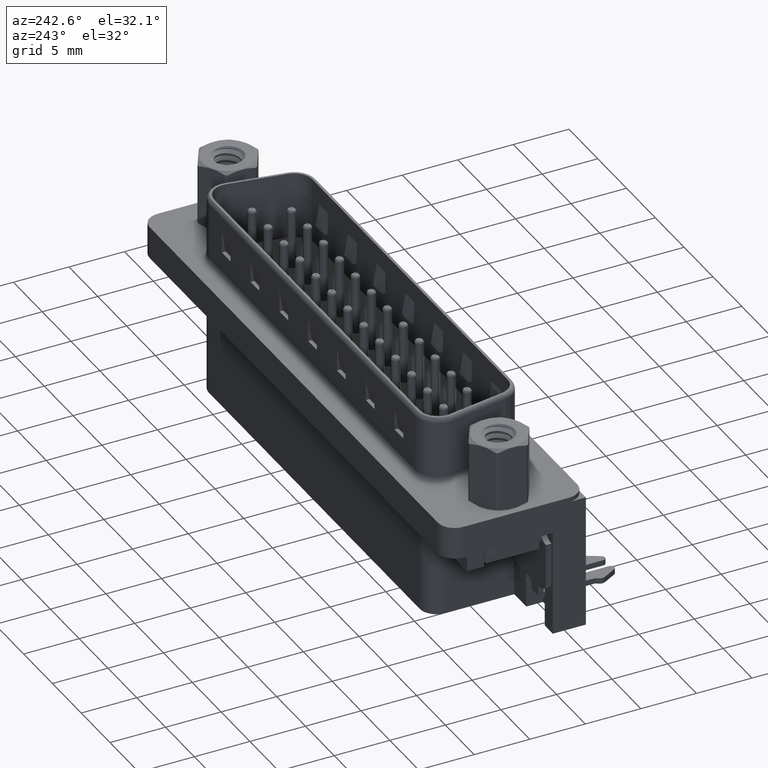
[diagram: clean part render]
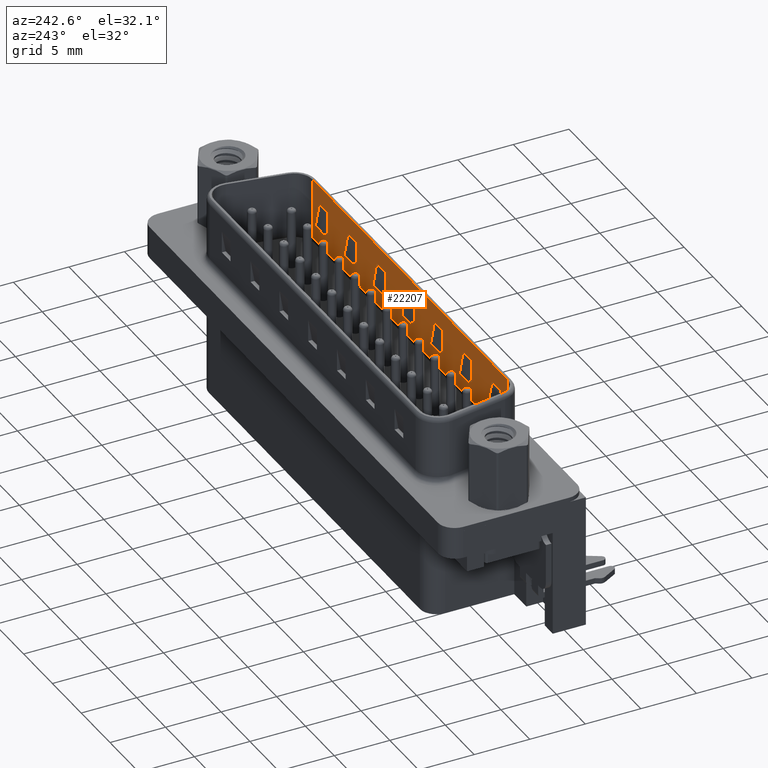
[diagram: same view with one face highlighted and labeled with its STEP entity id]
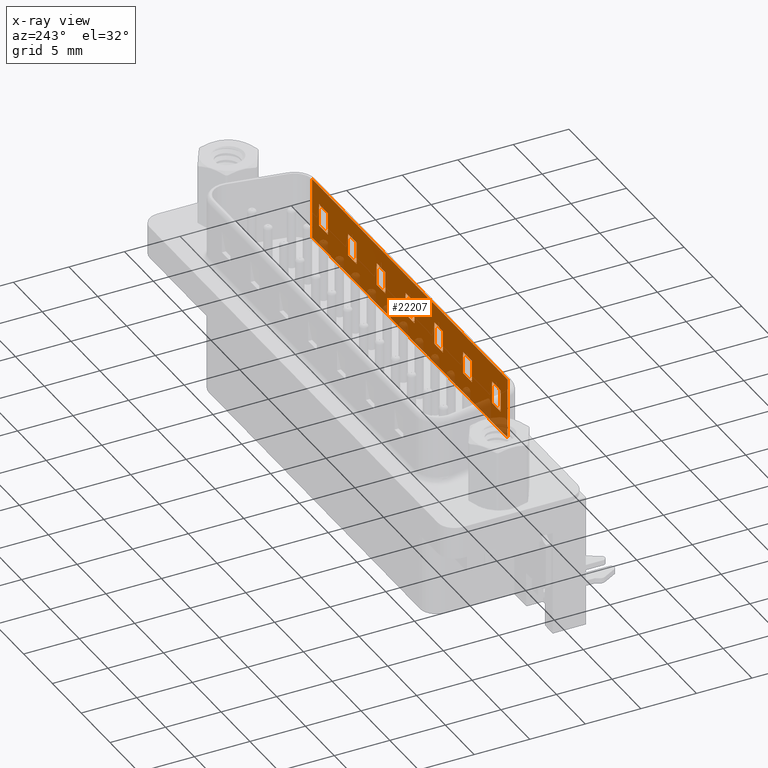
[diagram: x-ray of the same camera — body ghosted, the highlighted face saturated]
A machine part, auxiliary view. The second image highlights one B-rep face of the part: STEP entity #22207.
The next image is the same camera in x-ray: the body ghosted, the highlighted face saturated — about 11% of this face is hidden behind the body in this view.
In plain terms, the highlighted planar face has unit normal (0, 1, 0).
Its self-contained STEP definition (entity closure, byte-faithful):
#58 = VERTEX_POINT ( 'NONE', #3916 ) ;
#108 = CARTESIAN_POINT ( 'NONE',  ( 24.27000000000000000, -4.180000000000005000, 6.500000000000000000 ) ) ;
#260 = LINE ( 'NONE', #1100, #1598 ) ;
#347 = ORIENTED_EDGE ( 'NONE', *, *, #9523, .T. ) ;
#607 = VECTOR ( 'NONE', #19724, 1000.000000000000000 ) ;
#736 = CARTESIAN_POINT ( 'NONE',  ( 27.77000000000000300, -4.180000000000005000, 6.500000000000000000 ) ) ;
#751 = CARTESIAN_POINT ( 'NONE',  ( 9.269999999999999600, -4.180000000000005000, 2.694948974278314600 ) ) ;
#826 = ORIENTED_EDGE ( 'NONE', *, *, #6310, .T. ) ;
#897 = DIRECTION ( 'NONE',  ( 0.0000000000000000000, -0.0000000000000000000, -1.000000000000000000 ) ) ;
#904 = LINE ( 'NONE', #11072, #23615 ) ;
#924 = VERTEX_POINT ( 'NONE', #24294 ) ;
#997 = VERTEX_POINT ( 'NONE', #25959 ) ;
#1100 = CARTESIAN_POINT ( 'NONE',  ( 45.49015277954435300, -4.180000000000005000, 2.694948974278314600 ) ) ;
#1358 = DIRECTION ( 'NONE',  ( -1.000000000000000000, 0.0000000000000000000, 0.0000000000000000000 ) ) ;
#1429 = CARTESIAN_POINT ( 'NONE',  ( 6.549847220455644600, -4.180000000000005000, 6.500000000000000000 ) ) ;
#1587 = DIRECTION ( 'NONE',  ( -0.0000000000000000000, -0.0000000000000000000, -1.000000000000000000 ) ) ;
#1598 = VECTOR ( 'NONE', #16290, 1000.000000000000000 ) ;
#1631 = VERTEX_POINT ( 'NONE', #8570 ) ;
#1747 = VECTOR ( 'NONE', #8071, 1000.000000000000000 ) ;
#1757 = DIRECTION ( 'NONE',  ( 0.0000000000000000000, -0.0000000000000000000, -1.000000000000000000 ) ) ;
#1769 = CARTESIAN_POINT ( 'NONE',  ( 37.76999999999999600, -4.180000000000005000, 2.694948974278314600 ) ) ;
#1878 = VERTEX_POINT ( 'NONE', #9832 ) ;
#1921 = ORIENTED_EDGE ( 'NONE', *, *, #12300, .F. ) ;
#1938 = EDGE_CURVE ( 'NONE', #24684, #9412, #2375, .T. ) ;
#2044 = LINE ( 'NONE', #11519, #13970 ) ;
#2254 = DIRECTION ( 'NONE',  ( 0.0000000000000000000, -0.0000000000000000000, -1.000000000000000000 ) ) ;
#2321 = VECTOR ( 'NONE', #21369, 1000.000000000000000 ) ;
#2363 = DIRECTION ( 'NONE',  ( 1.000000000000000000, 0.0000000000000000000, 0.0000000000000000000 ) ) ;
#2375 = LINE ( 'NONE', #24560, #11187 ) ;
#2402 = LINE ( 'NONE', #14322, #13977 ) ;
#2518 = CARTESIAN_POINT ( 'NONE',  ( 14.27000000000000000, -4.180000000000005000, 2.694948974278314600 ) ) ;
#2531 = EDGE_CURVE ( 'NONE', #10967, #4141, #8052, .T. ) ;
#2568 = EDGE_CURVE ( 'NONE', #7830, #3151, #10415, .T. ) ;
#2692 = VECTOR ( 'NONE', #9816, 1000.000000000000000 ) ;
#2704 = ORIENTED_EDGE ( 'NONE', *, *, #21284, .F. ) ;
#2916 = ORIENTED_EDGE ( 'NONE', *, *, #2568, .F. ) ;
#2918 = CARTESIAN_POINT ( 'NONE',  ( 40.49015277954435300, -4.180000000000005000, 6.400000000000000400 ) ) ;
#2936 = LINE ( 'NONE', #3694, #3250 ) ;
#3005 = VERTEX_POINT ( 'NONE', #26328 ) ;
#3141 = DIRECTION ( 'NONE',  ( 0.0000000000000000000, 0.0000000000000000000, 1.000000000000000000 ) ) ;
#3151 = VERTEX_POINT ( 'NONE', #5234 ) ;
#3250 = VECTOR ( 'NONE', #1358, 1000.000000000000000 ) ;
#3276 = DIRECTION ( 'NONE',  ( 0.0000000000000000000, -0.0000000000000000000, -1.000000000000000000 ) ) ;
#3367 = CARTESIAN_POINT ( 'NONE',  ( 34.27000000000000300, -4.180000000000005000, 6.500000000000000000 ) ) ;
#3377 = VECTOR ( 'NONE', #22000, 1000.000000000000000 ) ;
#3395 = VERTEX_POINT ( 'NONE', #8656 ) ;
#3451 = EDGE_CURVE ( 'NONE', #25088, #21271, #19161, .T. ) ;
#3552 = EDGE_CURVE ( 'NONE', #3005, #10307, #15762, .T. ) ;
#3634 = EDGE_CURVE ( 'NONE', #3887, #14616, #19932, .T. ) ;
#3694 = CARTESIAN_POINT ( 'NONE',  ( 25.49015277954435600, -4.180000000000005000, 2.694948974278314600 ) ) ;
#3722 = EDGE_CURVE ( 'NONE', #25499, #19603, #904, .T. ) ;
#3726 = CARTESIAN_POINT ( 'NONE',  ( 25.49015277954435600, -4.180000000000005000, 4.694948974278315000 ) ) ;
#3789 = CARTESIAN_POINT ( 'NONE',  ( 32.77000000000000300, -4.180000000000005000, 2.714867081101111100 ) ) ;
#3856 = ORIENTED_EDGE ( 'NONE', *, *, #13455, .T. ) ;
#3884 = DIRECTION ( 'NONE',  ( 0.0000000000000000000, 0.0000000000000000000, 1.000000000000000000 ) ) ;
#3887 = VERTEX_POINT ( 'NONE', #17971 ) ;
#3902 = ORIENTED_EDGE ( 'NONE', *, *, #23858, .T. ) ;
#3916 = CARTESIAN_POINT ( 'NONE',  ( 7.770000000000002200, -4.179999999999996200, 4.694948974278313300 ) ) ;
#3999 = CARTESIAN_POINT ( 'NONE',  ( 45.49015277954435300, -4.180000000000005000, 4.694948974278315000 ) ) ;
#4141 = VERTEX_POINT ( 'NONE', #2518 ) ;
#4239 = EDGE_CURVE ( 'NONE', #24835, #20571, #6598, .T. ) ;
#4284 = CARTESIAN_POINT ( 'NONE',  ( 30.49015277954435300, -4.180000000000005000, 2.694948974278314600 ) ) ;
#4309 = FACE_BOUND ( 'NONE', #20420, .T. ) ;
#4334 = VECTOR ( 'NONE', #6205, 1000.000000000000000 ) ;
#4394 = DIRECTION ( 'NONE',  ( 0.0000000000000000000, -0.0000000000000000000, -1.000000000000000000 ) ) ;
#4523 = LINE ( 'NONE', #17805, #7916 ) ;
#4554 = EDGE_LOOP ( 'NONE', ( #20448, #3856, #13221, #6406 ) ) ;
#4562 = CARTESIAN_POINT ( 'NONE',  ( 40.49015277954435300, -4.180000000000005000, 6.500000000000000000 ) ) ;
#4564 = ORIENTED_EDGE ( 'NONE', *, *, #19503, .F. ) ;
#4569 = CARTESIAN_POINT ( 'NONE',  ( 32.77000000000000300, -4.179999999999996200, 4.694948974278313300 ) ) ;
#4581 = VECTOR ( 'NONE', #15773, 1000.000000000000000 ) ;
#4644 = CARTESIAN_POINT ( 'NONE',  ( 29.27000000000000000, -4.180000000000005000, 2.694948974278314600 ) ) ;
#4712 = ORIENTED_EDGE ( 'NONE', *, *, #3451, .F. ) ;
#4974 = EDGE_CURVE ( 'NONE', #58, #25246, #9925, .T. ) ;
#5016 = CARTESIAN_POINT ( 'NONE',  ( 39.26999999999999600, -4.180000000000005000, 2.714867081101112000 ) ) ;
#5033 = ORIENTED_EDGE ( 'NONE', *, *, #9531, .T. ) ;
#5132 = VECTOR ( 'NONE', #11609, 1000.000000000000000 ) ;
#5147 = DIRECTION ( 'NONE',  ( 0.0000000000000000000, 0.0000000000000000000, 1.000000000000000000 ) ) ;
#5157 = VECTOR ( 'NONE', #10951, 1000.000000000000000 ) ;
#5234 = CARTESIAN_POINT ( 'NONE',  ( 39.26999999999999600, -4.179999999999996200, 4.694948974278313300 ) ) ;
#5528 = DIRECTION ( 'NONE',  ( 0.0000000000000000000, 0.0000000000000000000, 1.000000000000000000 ) ) ;
#5589 = EDGE_LOOP ( 'NONE', ( #24772, #23639, #826, #6833, #17294, #9655 ) ) ;
#5634 = VERTEX_POINT ( 'NONE', #16458 ) ;
#5637 = VECTOR ( 'NONE', #27334, 1000.000000000000000 ) ;
#5648 = CARTESIAN_POINT ( 'NONE',  ( 19.27000000000000000, -4.180000000000005000, 6.500000000000000000 ) ) ;
#5843 = VECTOR ( 'NONE', #1587, 1000.000000000000000 ) ;
#5951 = VERTEX_POINT ( 'NONE', #24540 ) ;
#5976 = EDGE_CURVE ( 'NONE', #25246, #24472, #2044, .T. ) ;
#6001 = VERTEX_POINT ( 'NONE', #28019 ) ;
#6205 = DIRECTION ( 'NONE',  ( 0.0000000000000000000, -0.0000000000000000000, -1.000000000000000000 ) ) ;
#6223 = VECTOR ( 'NONE', #24395, 1000.000000000000000 ) ;
#6232 = CARTESIAN_POINT ( 'NONE',  ( 39.26999999999999600, -4.180000000000005000, 6.500000000000000000 ) ) ;
#6272 = ORIENTED_EDGE ( 'NONE', *, *, #5976, .F. ) ;
#6283 = EDGE_CURVE ( 'NONE', #9958, #25958, #20428, .T. ) ;
#6310 = EDGE_CURVE ( 'NONE', #3005, #5951, #17685, .T. ) ;
#6337 = LINE ( 'NONE', #13982, #14236 ) ;
#6368 = CARTESIAN_POINT ( 'NONE',  ( 34.27000000000000300, -4.180000000000005000, 6.500000000000000000 ) ) ;
#6384 = ORIENTED_EDGE ( 'NONE', *, *, #1938, .F. ) ;
#6406 = ORIENTED_EDGE ( 'NONE', *, *, #17531, .F. ) ;
#6490 = VECTOR ( 'NONE', #3884, 1000.000000000000000 ) ;
#6598 = LINE ( 'NONE', #24638, #4581 ) ;
#6646 = EDGE_CURVE ( 'NONE', #14321, #3395, #2402, .T. ) ;
#6708 = VECTOR ( 'NONE', #3141, 1000.000000000000000 ) ;
#6721 = DIRECTION ( 'NONE',  ( -0.0000000000000000000, -0.0000000000000000000, -1.000000000000000000 ) ) ;
#6833 = ORIENTED_EDGE ( 'NONE', *, *, #21102, .F. ) ;
#6914 = VECTOR ( 'NONE', #20684, 1000.000000000000000 ) ;
#7392 = EDGE_CURVE ( 'NONE', #18694, #24684, #10809, .T. ) ;
#7521 = LINE ( 'NONE', #10056, #1747 ) ;
#7529 = CARTESIAN_POINT ( 'NONE',  ( 35.49015277954436000, -4.180000000000005000, 2.694948974278314600 ) ) ;
#7558 = EDGE_CURVE ( 'NONE', #924, #997, #19716, .T. ) ;
#7579 = VECTOR ( 'NONE', #18973, 1000.000000000000000 ) ;
#7602 = DIRECTION ( 'NONE',  ( 0.0000000000000000000, -0.0000000000000000000, -1.000000000000000000 ) ) ;
#7704 = VECTOR ( 'NONE', #19162, 1000.000000000000000 ) ;
#7830 = VERTEX_POINT ( 'NONE', #21196 ) ;
#7870 = VERTEX_POINT ( 'NONE', #17186 ) ;
#7879 = LINE ( 'NONE', #16928, #6490 ) ;
#7916 = VECTOR ( 'NONE', #17894, 1000.000000000000000 ) ;
#7940 = CARTESIAN_POINT ( 'NONE',  ( 34.27000000000000300, -4.180000000000005000, 2.714867081101112000 ) ) ;
#8004 = CARTESIAN_POINT ( 'NONE',  ( 37.76999999999999600, -4.180000000000005000, 2.714867081101111100 ) ) ;
#8052 = LINE ( 'NONE', #18642, #16925 ) ;
#8071 = DIRECTION ( 'NONE',  ( -1.000000000000000000, 0.0000000000000000000, 0.0000000000000000000 ) ) ;
#8155 = VECTOR ( 'NONE', #21197, 1000.000000000000000 ) ;
#8191 = ORIENTED_EDGE ( 'NONE', *, *, #26756, .F. ) ;
#8228 = LINE ( 'NONE', #2918, #10245 ) ;
#8341 = VERTEX_POINT ( 'NONE', #25292 ) ;
#8402 = CARTESIAN_POINT ( 'NONE',  ( 55.49015277954435300, -4.180000000000005000, 4.694948974278315000 ) ) ;
#8419 = EDGE_CURVE ( 'NONE', #27118, #19403, #13241, .T. ) ;
#8471 = CARTESIAN_POINT ( 'NONE',  ( 24.27000000000000300, -4.179999999999996200, 4.694948974278313300 ) ) ;
#8570 = CARTESIAN_POINT ( 'NONE',  ( 12.77000000000000100, -4.179999999999996200, 4.694948974278313300 ) ) ;
#8577 = CARTESIAN_POINT ( 'NONE',  ( 12.77000000000000300, -4.180000000000005000, 6.500000000000000000 ) ) ;
#8616 = CARTESIAN_POINT ( 'NONE',  ( 24.27000000000000000, -4.180000000000005000, 2.694948974278314600 ) ) ;
#8656 = CARTESIAN_POINT ( 'NONE',  ( 19.27000000000000000, -4.180000000000005000, 2.714867081101112000 ) ) ;
#8671 = ORIENTED_EDGE ( 'NONE', *, *, #20132, .F. ) ;
#8688 = CARTESIAN_POINT ( 'NONE',  ( 39.26999999999999600, -4.180000000000005000, 6.500000000000000000 ) ) ;
#8894 = EDGE_CURVE ( 'NONE', #3395, #22166, #27501, .T. ) ;
#9110 = CARTESIAN_POINT ( 'NONE',  ( 7.770000000000002200, -4.180000000000005000, 2.694948974278314600 ) ) ;
#9388 = EDGE_LOOP ( 'NONE', ( #10325, #26827, #21413, #2916, #347, #6384 ) ) ;
#9398 = LINE ( 'NONE', #21710, #13128 ) ;
#9412 = VERTEX_POINT ( 'NONE', #8004 ) ;
#9523 = EDGE_CURVE ( 'NONE', #7830, #9412, #21996, .T. ) ;
#9531 = EDGE_CURVE ( 'NONE', #6001, #21271, #9398, .T. ) ;
#9655 = ORIENTED_EDGE ( 'NONE', *, *, #18911, .F. ) ;
#9666 = EDGE_LOOP ( 'NONE', ( #14871, #10650, #26552, #2704, #25489, #23440 ) ) ;
#9816 = DIRECTION ( 'NONE',  ( 0.0000000000000000000, -0.0000000000000000000, -1.000000000000000000 ) ) ;
#9832 = CARTESIAN_POINT ( 'NONE',  ( 7.770000000000002200, -4.180000000000005000, 2.714867081101111100 ) ) ;
#9857 = EDGE_LOOP ( 'NONE', ( #24815, #25912, #1921, #16296, #20060, #19868 ) ) ;
#9864 = DIRECTION ( 'NONE',  ( 1.000000000000000000, 0.0000000000000000000, 0.0000000000000000000 ) ) ;
#9871 = VERTEX_POINT ( 'NONE', #22738 ) ;
#9925 = LINE ( 'NONE', #3726, #7579 ) ;
#9958 = VERTEX_POINT ( 'NONE', #10656 ) ;
#10056 = CARTESIAN_POINT ( 'NONE',  ( 40.49015277954435300, -4.180000000000005000, 2.694948974278314600 ) ) ;
#10095 = VECTOR ( 'NONE', #4394, 1000.000000000000000 ) ;
#10151 = EDGE_CURVE ( 'NONE', #58, #1878, #22316, .T. ) ;
#10195 = LINE ( 'NONE', #4562, #25493 ) ;
#10245 = VECTOR ( 'NONE', #20158, 1000.000000000000000 ) ;
#10307 = VERTEX_POINT ( 'NONE', #8471 ) ;
#10325 = ORIENTED_EDGE ( 'NONE', *, *, #7392, .F. ) ;
#10395 = LINE ( 'NONE', #3999, #7704 ) ;
#10415 = LINE ( 'NONE', #8402, #16254 ) ;
#10650 = ORIENTED_EDGE ( 'NONE', *, *, #15343, .F. ) ;
#10656 = CARTESIAN_POINT ( 'NONE',  ( 27.77000000000000300, -4.180000000000005000, 2.694948974278314600 ) ) ;
#10665 = VECTOR ( 'NONE', #12039, 1000.000000000000000 ) ;
#10726 = DIRECTION ( 'NONE',  ( 0.0000000000000000000, -0.0000000000000000000, -1.000000000000000000 ) ) ;
#10745 = FACE_BOUND ( 'NONE', #9388, .T. ) ;
#10806 = CARTESIAN_POINT ( 'NONE',  ( 30.49015277954435300, -4.180000000000005000, 4.694948974278315000 ) ) ;
#10809 = LINE ( 'NONE', #20210, #3377 ) ;
#10814 = AXIS2_PLACEMENT_3D ( 'NONE', #16503, #13940, #22872 ) ;
#10872 = DIRECTION ( 'NONE',  ( 0.0000000000000000000, -0.0000000000000000000, -1.000000000000000000 ) ) ;
#10918 = DIRECTION ( 'NONE',  ( 1.000000000000000000, 0.0000000000000000000, 0.0000000000000000000 ) ) ;
#10942 = CARTESIAN_POINT ( 'NONE',  ( 24.27000000000000000, -4.180000000000005000, 2.714867081101112000 ) ) ;
#10951 = DIRECTION ( 'NONE',  ( 0.0000000000000000000, -0.0000000000000000000, -1.000000000000000000 ) ) ;
#10967 = VERTEX_POINT ( 'NONE', #13024 ) ;
#10975 = EDGE_CURVE ( 'NONE', #4141, #9871, #12340, .T. ) ;
#11021 = CARTESIAN_POINT ( 'NONE',  ( 37.76999999999999600, -4.180000000000005000, 6.500000000000000000 ) ) ;
#11072 = CARTESIAN_POINT ( 'NONE',  ( 32.77000000000000300, -4.180000000000005000, 6.500000000000000000 ) ) ;
#11128 = ORIENTED_EDGE ( 'NONE', *, *, #4974, .F. ) ;
#11187 = VECTOR ( 'NONE', #11919, 1000.000000000000000 ) ;
#11519 = CARTESIAN_POINT ( 'NONE',  ( 9.269999999999999600, -4.180000000000005000, 6.500000000000000000 ) ) ;
#11531 = CARTESIAN_POINT ( 'NONE',  ( 27.77000000000000300, -4.179999999999996200, 4.694948974278313300 ) ) ;
#11563 = EDGE_CURVE ( 'NONE', #8341, #20790, #8228, .T. ) ;
#11609 = DIRECTION ( 'NONE',  ( 0.0000000000000000000, -0.0000000000000000000, -1.000000000000000000 ) ) ;
#11648 = CARTESIAN_POINT ( 'NONE',  ( 19.27000000000000000, -4.180000000000005000, 2.694948974278314600 ) ) ;
#11919 = DIRECTION ( 'NONE',  ( 0.0000000000000000000, 0.0000000000000000000, 1.000000000000000000 ) ) ;
#12039 = DIRECTION ( 'NONE',  ( 1.000000000000000000, -0.0000000000000000000, 0.0000000000000000000 ) ) ;
#12140 = FACE_BOUND ( 'NONE', #14990, .T. ) ;
#12262 = CARTESIAN_POINT ( 'NONE',  ( 27.77000000000000300, -4.180000000000005000, 6.500000000000000000 ) ) ;
#12300 = EDGE_CURVE ( 'NONE', #19348, #10967, #18078, .T. ) ;
#12331 = VERTEX_POINT ( 'NONE', #8616 ) ;
#12339 = ORIENTED_EDGE ( 'NONE', *, *, #8894, .F. ) ;
#12340 = LINE ( 'NONE', #4284, #6223 ) ;
#12502 = LINE ( 'NONE', #17505, #6708 ) ;
#12568 = VECTOR ( 'NONE', #1757, 1000.000000000000000 ) ;
#12648 = ORIENTED_EDGE ( 'NONE', *, *, #6283, .F. ) ;
#13024 = CARTESIAN_POINT ( 'NONE',  ( 14.27000000000000000, -4.180000000000005000, 2.714867081101112000 ) ) ;
#13128 = VECTOR ( 'NONE', #10726, 1000.000000000000000 ) ;
#13165 = VECTOR ( 'NONE', #2254, 1000.000000000000000 ) ;
#13221 = ORIENTED_EDGE ( 'NONE', *, *, #3634, .F. ) ;
#13241 = LINE ( 'NONE', #3367, #12568 ) ;
#13270 = LINE ( 'NONE', #19969, #17029 ) ;
#13354 = CARTESIAN_POINT ( 'NONE',  ( 40.49015277954435300, -4.180000000000005000, 0.8999999999999998000 ) ) ;
#13455 = EDGE_CURVE ( 'NONE', #8341, #14616, #10195, .T. ) ;
#13500 = FACE_BOUND ( 'NONE', #25806, .T. ) ;
#13779 = CARTESIAN_POINT ( 'NONE',  ( 17.77000000000000000, -4.180000000000005000, 6.500000000000000000 ) ) ;
#13832 = VECTOR ( 'NONE', #26122, 1000.000000000000000 ) ;
#13940 = DIRECTION ( 'NONE',  ( 0.0000000000000000000, 1.000000000000000000, -0.0000000000000000000 ) ) ;
#13970 = VECTOR ( 'NONE', #24993, 1000.000000000000000 ) ;
#13977 = VECTOR ( 'NONE', #3276, 1000.000000000000000 ) ;
#13982 = CARTESIAN_POINT ( 'NONE',  ( 24.27000000000000000, -4.180000000000005000, 6.500000000000000000 ) ) ;
#14139 = CARTESIAN_POINT ( 'NONE',  ( 7.770000000000005800, -4.180000000000005000, 6.500000000000000000 ) ) ;
#14206 = VECTOR ( 'NONE', #7602, 1000.000000000000000 ) ;
#14236 = VECTOR ( 'NONE', #897, 1000.000000000000000 ) ;
#14276 = VECTOR ( 'NONE', #18647, 1000.000000000000000 ) ;
#14321 = VERTEX_POINT ( 'NONE', #16527 ) ;
#14322 = CARTESIAN_POINT ( 'NONE',  ( 19.27000000000000000, -4.180000000000005000, 6.500000000000000000 ) ) ;
#14381 = CARTESIAN_POINT ( 'NONE',  ( 40.49015277954435300, -4.180000000000005000, 4.694948974278315000 ) ) ;
#14431 = CARTESIAN_POINT ( 'NONE',  ( 35.49015277954436000, -4.180000000000005000, 4.694948974278315000 ) ) ;
#14496 = EDGE_CURVE ( 'NONE', #3151, #19146, #20026, .T. ) ;
#14539 = CARTESIAN_POINT ( 'NONE',  ( 50.49015277954435300, -4.180000000000005000, 2.694948974278314600 ) ) ;
#14616 = VERTEX_POINT ( 'NONE', #13354 ) ;
#14772 = CARTESIAN_POINT ( 'NONE',  ( 9.270000000000001400, -4.179999999999996200, 4.694948974278313300 ) ) ;
#14817 = EDGE_CURVE ( 'NONE', #10307, #23621, #24417, .T. ) ;
#14871 = ORIENTED_EDGE ( 'NONE', *, *, #7558, .F. ) ;
#14990 = EDGE_LOOP ( 'NONE', ( #22695, #14993, #6272, #11128, #22472, #8191 ) ) ;
#14993 = ORIENTED_EDGE ( 'NONE', *, *, #24896, .F. ) ;
#15136 = VERTEX_POINT ( 'NONE', #27128 ) ;
#15326 = CARTESIAN_POINT ( 'NONE',  ( 17.77000000000000000, -4.180000000000005000, 2.714867081101111100 ) ) ;
#15343 = EDGE_CURVE ( 'NONE', #19403, #924, #15944, .T. ) ;
#15352 = EDGE_CURVE ( 'NONE', #1631, #15136, #21351, .T. ) ;
#15608 = FACE_OUTER_BOUND ( 'NONE', #4554, .T. ) ;
#15735 = EDGE_CURVE ( 'NONE', #20571, #9958, #260, .T. ) ;
#15762 = LINE ( 'NONE', #14381, #26461 ) ;
#15766 = CARTESIAN_POINT ( 'NONE',  ( 9.269999999999999600, -4.180000000000005000, 6.500000000000000000 ) ) ;
#15773 = DIRECTION ( 'NONE',  ( 0.0000000000000000000, -0.0000000000000000000, -1.000000000000000000 ) ) ;
#15944 = LINE ( 'NONE', #6368, #10095 ) ;
#15974 = ORIENTED_EDGE ( 'NONE', *, *, #22716, .F. ) ;
#16254 = VECTOR ( 'NONE', #27994, 1000.000000000000000 ) ;
#16274 = LINE ( 'NONE', #27002, #14206 ) ;
#16290 = DIRECTION ( 'NONE',  ( -1.000000000000000000, 0.0000000000000000000, 0.0000000000000000000 ) ) ;
#16296 = ORIENTED_EDGE ( 'NONE', *, *, #23018, .F. ) ;
#16457 = EDGE_CURVE ( 'NONE', #9871, #15136, #22112, .T. ) ;
#16458 = CARTESIAN_POINT ( 'NONE',  ( 22.77000000000000300, -4.180000000000005000, 2.694948974278314600 ) ) ;
#16503 = CARTESIAN_POINT ( 'NONE',  ( 40.49015277954435300, -4.180000000000005000, 6.500000000000000000 ) ) ;
#16527 = CARTESIAN_POINT ( 'NONE',  ( 19.27000000000000300, -4.179999999999996200, 4.694948974278313300 ) ) ;
#16733 = LINE ( 'NONE', #8688, #5157 ) ;
#16925 = VECTOR ( 'NONE', #23257, 1000.000000000000000 ) ;
#16928 = CARTESIAN_POINT ( 'NONE',  ( 22.77000000000000300, -4.180000000000005000, 6.500000000000000000 ) ) ;
#17029 = VECTOR ( 'NONE', #2363, 1000.000000000000000 ) ;
#17186 = CARTESIAN_POINT ( 'NONE',  ( 29.27000000000000300, -4.179999999999996200, 4.694948974278313300 ) ) ;
#17249 = FACE_BOUND ( 'NONE', #9857, .T. ) ;
#17257 = CARTESIAN_POINT ( 'NONE',  ( 40.49015277954435300, -4.180000000000005000, 0.8999999999999998000 ) ) ;
#17294 = ORIENTED_EDGE ( 'NONE', *, *, #25206, .F. ) ;
#17343 = VECTOR ( 'NONE', #5528, 1000.000000000000000 ) ;
#17489 = DIRECTION ( 'NONE',  ( 0.0000000000000000000, -0.0000000000000000000, -1.000000000000000000 ) ) ;
#17505 = CARTESIAN_POINT ( 'NONE',  ( 7.770000000000002200, -4.180000000000005000, 6.500000000000000000 ) ) ;
#17531 = EDGE_CURVE ( 'NONE', #20790, #3887, #20175, .T. ) ;
#17593 = LINE ( 'NONE', #14431, #13832 ) ;
#17685 = LINE ( 'NONE', #26805, #5132 ) ;
#17805 = CARTESIAN_POINT ( 'NONE',  ( 32.77000000000000300, -4.180000000000005000, 6.500000000000000000 ) ) ;
#17894 = DIRECTION ( 'NONE',  ( 0.0000000000000000000, 0.0000000000000000000, 1.000000000000000000 ) ) ;
#17971 = CARTESIAN_POINT ( 'NONE',  ( 6.549847220455644600, -4.180000000000005000, 0.8999999999999998000 ) ) ;
#18078 = LINE ( 'NONE', #23826, #27233 ) ;
#18109 = DIRECTION ( 'NONE',  ( -1.000000000000000000, 0.0000000000000000000, 0.0000000000000000000 ) ) ;
#18642 = CARTESIAN_POINT ( 'NONE',  ( 14.27000000000000000, -4.180000000000005000, 6.500000000000000000 ) ) ;
#18647 = DIRECTION ( 'NONE',  ( -1.000000000000000000, 0.0000000000000000000, 0.0000000000000000000 ) ) ;
#18694 = VERTEX_POINT ( 'NONE', #25924 ) ;
#18911 = EDGE_CURVE ( 'NONE', #23621, #12331, #6337, .T. ) ;
#18973 = DIRECTION ( 'NONE',  ( 1.000000000000000000, 0.0000000000000000000, 0.0000000000000000000 ) ) ;
#19146 = VERTEX_POINT ( 'NONE', #5016 ) ;
#19161 = LINE ( 'NONE', #13779, #20498 ) ;
#19162 = DIRECTION ( 'NONE',  ( 1.000000000000000000, 0.0000000000000000000, 0.0000000000000000000 ) ) ;
#19211 = ORIENTED_EDGE ( 'NONE', *, *, #15735, .F. ) ;
#19348 = VERTEX_POINT ( 'NONE', #23329 ) ;
#19403 = VERTEX_POINT ( 'NONE', #7940 ) ;
#19503 = EDGE_CURVE ( 'NONE', #7870, #24835, #16274, .T. ) ;
#19603 = VERTEX_POINT ( 'NONE', #3789 ) ;
#19610 = LINE ( 'NONE', #10806, #19944 ) ;
#19716 = LINE ( 'NONE', #14539, #14276 ) ;
#19724 = DIRECTION ( 'NONE',  ( 0.0000000000000000000, -0.0000000000000000000, -1.000000000000000000 ) ) ;
#19868 = ORIENTED_EDGE ( 'NONE', *, *, #16457, .F. ) ;
#19932 = LINE ( 'NONE', #17257, #10665 ) ;
#19936 = ORIENTED_EDGE ( 'NONE', *, *, #22666, .F. ) ;
#19944 = VECTOR ( 'NONE', #10918, 1000.000000000000000 ) ;
#19969 = CARTESIAN_POINT ( 'NONE',  ( 50.49015277954435300, -4.180000000000005000, 4.694948974278315000 ) ) ;
#20005 = FACE_BOUND ( 'NONE', #9666, .T. ) ;
#20026 = LINE ( 'NONE', #6232, #2321 ) ;
#20060 = ORIENTED_EDGE ( 'NONE', *, *, #15352, .T. ) ;
#20132 = EDGE_CURVE ( 'NONE', #22166, #25088, #25696, .T. ) ;
#20158 = DIRECTION ( 'NONE',  ( -1.000000000000000000, 0.0000000000000000000, 0.0000000000000000000 ) ) ;
#20175 = LINE ( 'NONE', #1429, #5843 ) ;
#20210 = CARTESIAN_POINT ( 'NONE',  ( 55.49015277954435300, -4.180000000000005000, 2.694948974278314600 ) ) ;
#20235 = EDGE_CURVE ( 'NONE', #21937, #24188, #2936, .T. ) ;
#20289 = CARTESIAN_POINT ( 'NONE',  ( 34.27000000000000300, -4.179999999999996200, 4.694948974278313300 ) ) ;
#20420 = EDGE_LOOP ( 'NONE', ( #19211, #26109, #4564, #15974, #3902, #12648 ) ) ;
#20428 = LINE ( 'NONE', #12262, #17343 ) ;
#20448 = ORIENTED_EDGE ( 'NONE', *, *, #11563, .F. ) ;
#20498 = VECTOR ( 'NONE', #5147, 1000.000000000000000 ) ;
#20571 = VERTEX_POINT ( 'NONE', #4644 ) ;
#20684 = DIRECTION ( 'NONE',  ( 0.0000000000000000000, -0.0000000000000000000, -1.000000000000000000 ) ) ;
#20790 = VERTEX_POINT ( 'NONE', #25037 ) ;
#20922 = CARTESIAN_POINT ( 'NONE',  ( 12.77000000000000100, -4.180000000000005000, 6.500000000000000000 ) ) ;
#20952 = EDGE_CURVE ( 'NONE', #19146, #18694, #16733, .T. ) ;
#21102 = EDGE_CURVE ( 'NONE', #5634, #5951, #7879, .T. ) ;
#21196 = CARTESIAN_POINT ( 'NONE',  ( 37.76999999999999600, -4.179999999999996200, 4.694948974278313300 ) ) ;
#21197 = DIRECTION ( 'NONE',  ( 0.0000000000000000000, 0.0000000000000000000, 1.000000000000000000 ) ) ;
#21271 = VERTEX_POINT ( 'NONE', #15326 ) ;
#21284 = EDGE_CURVE ( 'NONE', #25499, #27118, #13270, .T. ) ;
#21339 = VECTOR ( 'NONE', #18109, 1000.000000000000000 ) ;
#21351 = LINE ( 'NONE', #8577, #4334 ) ;
#21369 = DIRECTION ( 'NONE',  ( 0.0000000000000000000, -0.0000000000000000000, -1.000000000000000000 ) ) ;
#21413 = ORIENTED_EDGE ( 'NONE', *, *, #14496, .F. ) ;
#21710 = CARTESIAN_POINT ( 'NONE',  ( 17.77000000000000000, -4.180000000000005000, 6.500000000000000000 ) ) ;
#21937 = VERTEX_POINT ( 'NONE', #751 ) ;
#21945 = VERTEX_POINT ( 'NONE', #11531 ) ;
#21996 = LINE ( 'NONE', #11021, #607 ) ;
#22000 = DIRECTION ( 'NONE',  ( -1.000000000000000000, 0.0000000000000000000, 0.0000000000000000000 ) ) ;
#22112 = LINE ( 'NONE', #20922, #8155 ) ;
#22166 = VERTEX_POINT ( 'NONE', #11648 ) ;
#22207 = ADVANCED_FACE ( 'NONE', ( #15608, #20005, #10745, #13500, #17249, #12140, #4309, #27114 ), #27324, .T. ) ;
#22316 = LINE ( 'NONE', #14139, #5637 ) ;
#22472 = ORIENTED_EDGE ( 'NONE', *, *, #10151, .T. ) ;
#22666 = EDGE_CURVE ( 'NONE', #6001, #14321, #17593, .T. ) ;
#22695 = ORIENTED_EDGE ( 'NONE', *, *, #20235, .F. ) ;
#22716 = EDGE_CURVE ( 'NONE', #21945, #7870, #10395, .T. ) ;
#22738 = CARTESIAN_POINT ( 'NONE',  ( 12.77000000000000100, -4.180000000000005000, 2.694948974278314600 ) ) ;
#22842 = CARTESIAN_POINT ( 'NONE',  ( 17.77000000000000000, -4.180000000000005000, 2.694948974278314600 ) ) ;
#22872 = DIRECTION ( 'NONE',  ( 0.0000000000000000000, 0.0000000000000000000, 1.000000000000000000 ) ) ;
#23018 = EDGE_CURVE ( 'NONE', #1631, #19348, #19610, .T. ) ;
#23257 = DIRECTION ( 'NONE',  ( 0.0000000000000000000, -0.0000000000000000000, -1.000000000000000000 ) ) ;
#23329 = CARTESIAN_POINT ( 'NONE',  ( 14.27000000000000100, -4.179999999999996200, 4.694948974278313300 ) ) ;
#23440 = ORIENTED_EDGE ( 'NONE', *, *, #24260, .F. ) ;
#23615 = VECTOR ( 'NONE', #17489, 1000.000000000000000 ) ;
#23621 = VERTEX_POINT ( 'NONE', #10942 ) ;
#23639 = ORIENTED_EDGE ( 'NONE', *, *, #3552, .F. ) ;
#23826 = CARTESIAN_POINT ( 'NONE',  ( 14.27000000000000000, -4.180000000000005000, 6.500000000000000000 ) ) ;
#23858 = EDGE_CURVE ( 'NONE', #21945, #25958, #26992, .T. ) ;
#23972 = CARTESIAN_POINT ( 'NONE',  ( 29.27000000000000000, -4.180000000000005000, 2.714867081101112000 ) ) ;
#24060 = CARTESIAN_POINT ( 'NONE',  ( 27.77000000000000300, -4.180000000000005000, 2.714867081101111100 ) ) ;
#24102 = ORIENTED_EDGE ( 'NONE', *, *, #6646, .F. ) ;
#24186 = VECTOR ( 'NONE', #26618, 1000.000000000000000 ) ;
#24188 = VERTEX_POINT ( 'NONE', #9110 ) ;
#24260 = EDGE_CURVE ( 'NONE', #997, #19603, #4523, .T. ) ;
#24294 = CARTESIAN_POINT ( 'NONE',  ( 34.27000000000000300, -4.180000000000005000, 2.694948974278314600 ) ) ;
#24395 = DIRECTION ( 'NONE',  ( -1.000000000000000000, 0.0000000000000000000, 0.0000000000000000000 ) ) ;
#24417 = LINE ( 'NONE', #108, #13165 ) ;
#24472 = VERTEX_POINT ( 'NONE', #27917 ) ;
#24540 = CARTESIAN_POINT ( 'NONE',  ( 22.77000000000000300, -4.180000000000005000, 2.714867081101111100 ) ) ;
#24560 = CARTESIAN_POINT ( 'NONE',  ( 37.76999999999999600, -4.180000000000005000, 6.500000000000000000 ) ) ;
#24638 = CARTESIAN_POINT ( 'NONE',  ( 29.27000000000000000, -4.180000000000005000, 6.500000000000000000 ) ) ;
#24684 = VERTEX_POINT ( 'NONE', #1769 ) ;
#24772 = ORIENTED_EDGE ( 'NONE', *, *, #14817, .F. ) ;
#24815 = ORIENTED_EDGE ( 'NONE', *, *, #10975, .F. ) ;
#24835 = VERTEX_POINT ( 'NONE', #23972 ) ;
#24896 = EDGE_CURVE ( 'NONE', #24472, #21937, #25199, .T. ) ;
#24993 = DIRECTION ( 'NONE',  ( 0.0000000000000000000, -0.0000000000000000000, -1.000000000000000000 ) ) ;
#25037 = CARTESIAN_POINT ( 'NONE',  ( 6.549847220455644600, -4.180000000000005000, 6.400000000000000400 ) ) ;
#25088 = VERTEX_POINT ( 'NONE', #22842 ) ;
#25199 = LINE ( 'NONE', #15766, #24186 ) ;
#25206 = EDGE_CURVE ( 'NONE', #12331, #5634, #7521, .T. ) ;
#25246 = VERTEX_POINT ( 'NONE', #14772 ) ;
#25292 = CARTESIAN_POINT ( 'NONE',  ( 40.49015277954435300, -4.180000000000005000, 6.400000000000000400 ) ) ;
#25489 = ORIENTED_EDGE ( 'NONE', *, *, #3722, .T. ) ;
#25493 = VECTOR ( 'NONE', #6721, 1000.000000000000000 ) ;
#25499 = VERTEX_POINT ( 'NONE', #4569 ) ;
#25696 = LINE ( 'NONE', #7529, #21339 ) ;
#25806 = EDGE_LOOP ( 'NONE', ( #8671, #12339, #24102, #19936, #5033, #4712 ) ) ;
#25912 = ORIENTED_EDGE ( 'NONE', *, *, #2531, .F. ) ;
#25924 = CARTESIAN_POINT ( 'NONE',  ( 39.26999999999999600, -4.180000000000005000, 2.694948974278314600 ) ) ;
#25958 = VERTEX_POINT ( 'NONE', #24060 ) ;
#25959 = CARTESIAN_POINT ( 'NONE',  ( 32.77000000000000300, -4.180000000000005000, 2.694948974278314600 ) ) ;
#26109 = ORIENTED_EDGE ( 'NONE', *, *, #4239, .F. ) ;
#26122 = DIRECTION ( 'NONE',  ( 1.000000000000000000, 0.0000000000000000000, 0.0000000000000000000 ) ) ;
#26328 = CARTESIAN_POINT ( 'NONE',  ( 22.77000000000000300, -4.179999999999996200, 4.694948974278313300 ) ) ;
#26461 = VECTOR ( 'NONE', #9864, 1000.000000000000000 ) ;
#26552 = ORIENTED_EDGE ( 'NONE', *, *, #8419, .F. ) ;
#26618 = DIRECTION ( 'NONE',  ( 0.0000000000000000000, -0.0000000000000000000, -1.000000000000000000 ) ) ;
#26756 = EDGE_CURVE ( 'NONE', #24188, #1878, #12502, .T. ) ;
#26805 = CARTESIAN_POINT ( 'NONE',  ( 22.77000000000000300, -4.180000000000005000, 6.500000000000000000 ) ) ;
#26827 = ORIENTED_EDGE ( 'NONE', *, *, #20952, .F. ) ;
#26992 = LINE ( 'NONE', #736, #6914 ) ;
#27002 = CARTESIAN_POINT ( 'NONE',  ( 29.27000000000000000, -4.180000000000005000, 6.500000000000000000 ) ) ;
#27114 = FACE_BOUND ( 'NONE', #5589, .T. ) ;
#27118 = VERTEX_POINT ( 'NONE', #20289 ) ;
#27128 = CARTESIAN_POINT ( 'NONE',  ( 12.77000000000000100, -4.180000000000005000, 2.714867081101111100 ) ) ;
#27233 = VECTOR ( 'NONE', #10872, 1000.000000000000000 ) ;
#27324 = PLANE ( 'NONE',  #10814 ) ;
#27334 = DIRECTION ( 'NONE',  ( 0.0000000000000000000, -0.0000000000000000000, -1.000000000000000000 ) ) ;
#27501 = LINE ( 'NONE', #5648, #2692 ) ;
#27917 = CARTESIAN_POINT ( 'NONE',  ( 9.269999999999999600, -4.180000000000005000, 2.714867081101112000 ) ) ;
#27994 = DIRECTION ( 'NONE',  ( 1.000000000000000000, 0.0000000000000000000, 0.0000000000000000000 ) ) ;
#28019 = CARTESIAN_POINT ( 'NONE',  ( 17.77000000000000000, -4.179999999999996200, 4.694948974278313300 ) ) ;